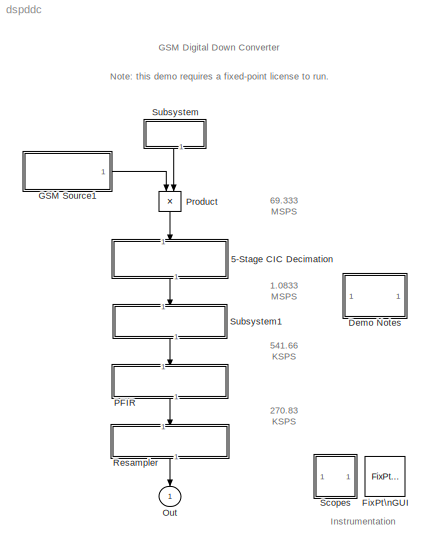
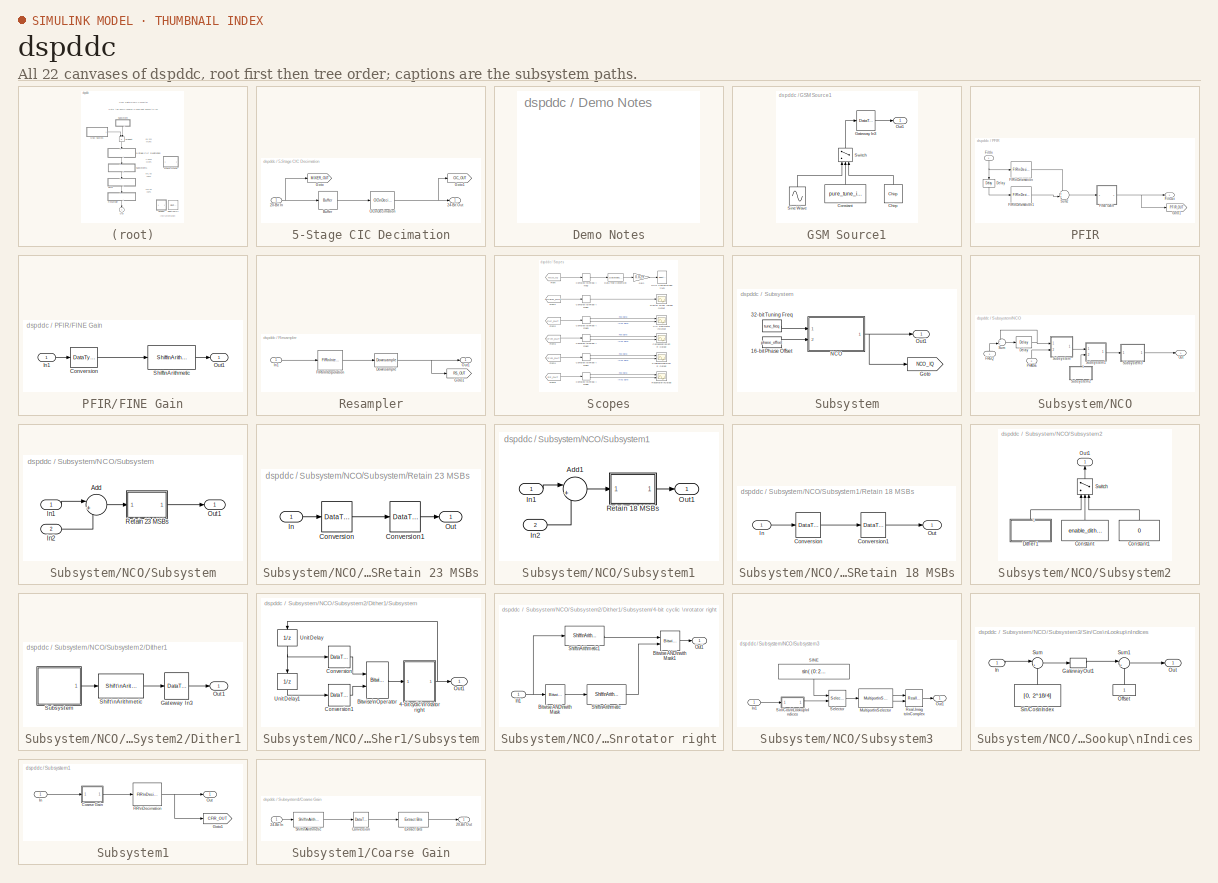
[diagram: thumbnail index - all 22 canvases of the model, root first then tree order]
MODEL dspddc
KIND model
CONFIG InitFcn = ;fxptdlg('fxptdlg_simInit_cb');
CONFIG PreLoadFcn = gsmcoeffs
CONFIG StartFcn = ;fxptdlg('fxptdlg_sim_cb');
CONFIG StopFcn = ;fxptdlg('fxptdlg_store_cb');
BLOCK [SubSystem] 5-Stage CIC Decimation
  MaskDisplay = disp('CIC Decimator')
  MaskIconFrame = on
  MaskIconOpaque = on
  MaskIconRotate = none
  MaskIconUnits = autoscale
  MinAlgLoopOccurrences = off
  Ports = [1, 1]
  PropExecContextAcrossSSBoundary = on
  RTWSystemCode = Auto
  TreatAsAtomicUnit = off
BLOCK [Inport] 5-Stage CIC Decimation/20-Bit In
  IconDisplay = Port number
  LatchInput = off
BLOCK [Outport] 5-Stage CIC Decimation/24-Bit Out
  BusOutputAsStruct = off
  IconDisplay = Port number
BLOCK [Reference] 5-Stage CIC Decimation/Buffer  REF=dspbuff3/Buffer
  N = 64
  Ports = [1, 1]
  SourceBlock = dspbuff3/Buffer
  SourceType = Buffer
  V = 0
  ic = 0
BLOCK [Reference] 5-Stage CIC Decimation/CIC\nDecimation  REF=dspmlti4/CIC\nDecimation
  BPS = [50 29 24 24 24 24 24 24 24 24]
  M = 1
  N = 5
  Ports = [1, 1]
  R = 64
  SourceBlock = dspmlti4/CIC\nDecimation
  SourceType = CIC Decimation
  UserData = DataTag0
  UserDataPersistent = on
  filtFrom = Dialog
  filtobj = Hm_decim
  framing = Maintain input frame rate
  ftype = Decimator
  launchFVT = off
  outputMode = Same as final filter stage
  outputWordLength = 24
  resampPhase = 0
BLOCK [Goto] 5-Stage CIC Decimation/Goto
  DialogController = Simulink.DDGSource
  GotoTag = MIXER_OUT
  TagVisibility = global
BLOCK [Goto] 5-Stage CIC Decimation/Goto1
  DialogController = Simulink.DDGSource
  GotoTag = CIC_OUT
  TagVisibility = global
BLOCK [SubSystem] Demo Notes
  MaskDisplay = disp('Notes')
  MaskIconFrame = on
  MaskIconOpaque = on
  MaskIconRotate = none
  MaskIconUnits = autoscale
  MinAlgLoopOccurrences = off
  OpenFcn = web(which('dspddc.html'))
  Ports = []
  PropExecContextAcrossSSBoundary = on
  RTWSystemCode = Auto
  TreatAsAtomicUnit = off
BLOCK [Reference] FixPt\nGUI  REF=fixpt_lib_4/FixPt\nGUI  (lib defined in mdl_ef9dacb0d1df)
  Ports = []
  ShowPortLabels = on
  SourceBlock = fixpt_lib_4/FixPt\nGUI
  SourceType = Fixed-Point GUI
BLOCK [SubSystem] GSM Source1
  MaskDisplay = disp(['GSM' 10 'Source']);\n\n\n\n\n\n\nport_label('output', 1, 'A/D');
  MaskEnableString = on
  MaskIconFrame = on
  MaskIconOpaque = on
  MaskIconRotate = none
  MaskIconUnits = autoscale
  MaskInitialization = pure_tune_input = (source_type - 1);
  MaskPromptString = Source type:
  MaskStyleString = popup(Chirp|Sinusoid)
  MaskToolTipString = on
  MaskTunableValueString = on
  MaskType = GSM Source
  MaskValueString = Chirp
  MaskVariables = source_type=@1;
  MaskVisibilityString = on
  MinAlgLoopOccurrences = off
  Ports = [0, 1]
  PropExecContextAcrossSSBoundary = on
  RTWSystemCode = Auto
  TreatAsAtomicUnit = off
BLOCK [Reference] GSM Source1/Chirp  REF=dspsrcs4/Chirp
  Ports = [0, 1]
  SourceBlock = dspsrcs4/Chirp
  SourceType = Chirp
  Ts = 1/69.333e6
  Tsweep = 16384/69.333e6
  datatype = Double
  f0 = .2078*69.333e6
  f1 = .2088*69.333e6
  mode = Unidirectional
  phase = 0
  spf = 1
  sweep = Linear
  t1 = 16384/69.333e6
BLOCK [Constant] GSM Source1/Constant
  OutDataTypeMode = boolean
  Value = pure_tune_input
BLOCK [DataTypeConversion] GSM Source1/Gateway In3
  OutDataType = sfix(14)
  OutDataTypeMode = Specify via dialog
  OutScaling = 2^-13
  RndMeth = Nearest
BLOCK [Outport] GSM Source1/Out1
  BusOutputAsStruct = off
  IconDisplay = Port number
BLOCK [Sin] GSM Source1/Sine Wave
  Frequency = 2*pi*69.1e6*5/24
  Ports = [0, 1]
  SampleTime = 1/69.333e6
  SineType = Time based
BLOCK [Switch] GSM Source1/Switch
  Criteria = u2 ~= 0
  SaturateOnIntegerOverflow = off
  Threshold = 0.5
BLOCK [Outport] Out
  BusOutputAsStruct = off
  IconDisplay = Port number
BLOCK [SubSystem] PFIR
  MaskCallbackString = |
  MaskDescription = Valid FINE (gain parameter) inputs are positive integers less than 16383.  The FINE_GAIN is calculated as FINE/1024.
  MaskDisplay = disp('Programmable FIR')
  MaskEnableString = on,on
  MaskIconFrame = on
  MaskIconOpaque = on
  MaskIconRotate = none
  MaskIconUnits = autoscale
  MaskPromptString = PFIR coefficients:|FINE gain (1-16383):
  MaskStyleString = edit,edit
  MaskTabNameString = ,
  MaskToolTipString = on,on
  MaskTunableValueString = off,off
  MaskType = PFIR
  MaskValueString = pfir|1024
  MaskVarAliasString = ,
  MaskVariables = h=@1;g=@2;
  MaskVisibilityString = on,on
  MinAlgLoopOccurrences = off
  Ports = [1, 1]
  PropExecContextAcrossSSBoundary = on
  RTWSystemCode = Auto
  TreatAsAtomicUnit = off
BLOCK [Reference] PFIR/Delay  REF=dspsigops/Delay
  Ports = [1, 1]
  SourceBlock = dspsigops/Delay
  SourceType = Delay
  delay = 1
  dif_ic_for_ch = off
  dif_ic_for_dly = off
  dly_unit = Samples
  ic = 0
  ic_detail = off
  reset_popup = None
BLOCK [SubSystem] PFIR/FINE Gain
  MaskDisplay = disp('FINE\\nGain')
  MaskIconFrame = on
  MaskIconOpaque = on
  MaskIconRotate = none
  MaskIconUnits = autoscale
  MinAlgLoopOccurrences = off
  Ports = [1, 1]
  PropExecContextAcrossSSBoundary = on
  RTWSystemCode = Auto
  TreatAsAtomicUnit = off
BLOCK [DataTypeConversion] PFIR/FINE Gain/Conversion
  OutDataType = sfix(24)
  OutDataTypeMode = Specify via dialog
  OutScaling = 2^12
  RndMeth = Floor
  SaturateOnIntegerOverflow = off
BLOCK [Inport] PFIR/FINE Gain/In1
  IconDisplay = Port number
  LatchInput = off
BLOCK [Outport] PFIR/FINE Gain/Out1
  BusOutputAsStruct = off
  IconDisplay = Port number
BLOCK [Reference] PFIR/FINE Gain/Shift\nArithmetic  REF=simulink/Logic and Bit\nOperations/Shift\nArithmetic
  Ports = [1, 1]
  ShowPortLabels = on
  SourceBlock = simulink/Logic and Bit\nOperations/Shift\nArithmetic
  SourceType = Shift Arithmetic
  nBinPtShiftRight = 0
  nBitShiftRight = -( log2(g) - 10 )
BLOCK [Reference] PFIR/FIR\nDecimation  REF=dspmlti3/FIR\nDecimation
  D = 2
  DialogController = dspDDGCreate
  DialogControllerArgs = DataTag1
  LockScale = off
  Ports = [1, 1]
  SourceBlock = dspmlti3/FIR\nDecimation
  SourceType = FIR Decimation
  accumFracLength = 30
  accumMode = Same as product output
  accumWordLength = 32
  additionalParams = off
  allowOverrides = on
  firstCoeffFracLength = 16
  firstCoeffMode = Specify word length
  firstCoeffWordLength = 16
  framing = Maintain input frame size
  h = h(1:2:length(h))
  outputBufInitCond = 0
  outputFracLength = -12
  outputMode = Same as accumulator
  outputWordLength = 20
  overflowMode = off
  prodOutputFracLength = -12
  prodOutputMode = Binary point scaling
  prodOutputWordLength = 20
  roundingMode = Nearest
BLOCK [Reference] PFIR/FIR\nDecimation1  REF=dspmlti3/FIR\nDecimation
  D = 2
  DialogController = dspDDGCreate
  DialogControllerArgs = DataTag2
  LockScale = off
  Ports = [1, 1]
  SourceBlock = dspmlti3/FIR\nDecimation
  SourceType = FIR Decimation
  accumFracLength = 30
  accumMode = Same as product output
  accumWordLength = 32
  additionalParams = off
  allowOverrides = on
  firstCoeffFracLength = 16
  firstCoeffMode = Specify word length
  firstCoeffWordLength = 16
  framing = Maintain input frame size
  h = h(2:2:length(h))
  outputBufInitCond = 0
  outputFracLength = -12
  outputMode = Same as accumulator
  outputWordLength = 20
  overflowMode = off
  prodOutputFracLength = -12
  prodOutputMode = Binary point scaling
  prodOutputWordLength = 20
  roundingMode = Nearest
BLOCK [Inport] PFIR/FiltIn
  IconDisplay = Port number
  LatchInput = off
BLOCK [Outport] PFIR/FiltOut
  BusOutputAsStruct = off
  IconDisplay = Port number
BLOCK [Goto] PFIR/Goto1
  DialogController = Simulink.DDGSource
  GotoTag = PFIR_OUT
  TagVisibility = global
BLOCK [Sum] PFIR/Sum2
  IconShape = round
  Inputs = ++|
  OutDataType = sfix(20)
  OutDataTypeMode = Inherit via internal rule
  OutScaling = 2^12
  Ports = [2, 1]
BLOCK [Product] Product
  InputSameDT = off
  OutDataType = sfix(20)
  OutDataTypeMode = Specify via dialog
  OutScaling = 2^-18
  Ports = [2, 1]
  RndMeth = Nearest
  SaturateOnIntegerOverflow = off
BLOCK [SubSystem] Resampler
  MaskCallbackString = ||
  MaskDisplay = disp('Rate Conversion')
  MaskEnableString = on,on,on
  MaskIconFrame = on
  MaskIconOpaque = on
  MaskIconRotate = none
  MaskIconUnits = autoscale
  MaskPromptString = Resampling FIR coefficients:|NDELAY (upsample factor):|NDEC (downsample factor):
  MaskStyleString = edit,edit,edit
  MaskTabNameString = ,,
  MaskToolTipString = on,on,on
  MaskTunableValueString = off,off,off
  MaskType = Resampler
  MaskValueString = fir1(31,0.25)|4|3
  MaskVarAliasString = ,,
  MaskVariables = h=@1;Ndelay=@2;Ndec=@3;
  MaskVisibilityString = on,on,on
  MinAlgLoopOccurrences = off
  Ports = [1, 1]
  PropExecContextAcrossSSBoundary = on
  RTWSystemCode = Auto
  TreatAsAtomicUnit = off
BLOCK [Reference] Resampler/Downsample  REF=dspsigops/Downsample
  N = Ndec
  Ports = [1, 1]
  SourceBlock = dspsigops/Downsample
  SourceType = Downsample
  fmode = Maintain input frame size
  ic = 0
  phase = 0
  smode = Allow multirate
BLOCK [Reference] Resampler/FIR\nInterpolation  REF=dspmlti3/FIR\nInterpolation
  DialogController = dspDDGCreate
  DialogControllerArgs = DataTag3
  L = Ndelay
  LockScale = off
  Ports = [1, 1]
  SourceBlock = dspmlti3/FIR\nInterpolation
  SourceType = FIR Interpolation
  accumFracLength = 30
  accumMode = Same as product output
  accumWordLength = 32
  additionalParams = off
  allowOverrides = on
  firstCoeffFracLength = 13
  firstCoeffMode = Specify word length
  firstCoeffWordLength = 12
  framing = Maintain input frame size
  h = h
  outputBufInitCond = 0
  outputFracLength = -12
  outputMode = Same as accumulator
  outputWordLength = 24
  overflowMode = off
  prodOutputFracLength = -12
  prodOutputMode = Binary point scaling
  prodOutputWordLength = 24
  roundingMode = Nearest
BLOCK [Goto] Resampler/Goto1
  DialogController = Simulink.DDGSource
  GotoTag = RS_OUT
  TagVisibility = global
BLOCK [Inport] Resampler/In1
  IconDisplay = Port number
  LatchInput = off
BLOCK [Outport] Resampler/Out1
  BusOutputAsStruct = off
  IconDisplay = Port number
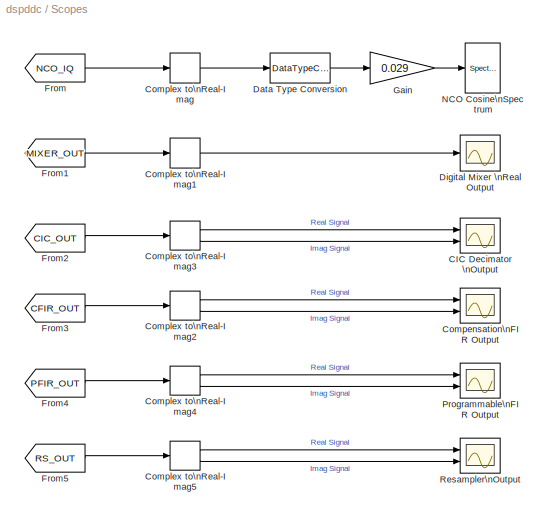
BLOCK [SubSystem] Scopes
  MaskDisplay = disp('Scopes')
  MaskIconFrame = on
  MaskIconOpaque = on
  MaskIconRotate = none
  MaskIconUnits = autoscale
  MinAlgLoopOccurrences = off
  Ports = []
  PropExecContextAcrossSSBoundary = on
  RTWSystemCode = Auto
  TreatAsAtomicUnit = off
BLOCK [Scope] Scopes/CIC Decimator \nOutput
  DataFormat = Structure
  MaxDataPoints = 1000000
  NumInputPorts = 2
  Ports = [2]
  SaveName = ScopeData1
  TimeRange = 0.0003
  YMax = 1e+009~1e+009
  YMin = -1e+009~-1e+009
  ZoomMode = xonly
BLOCK [Scope] Scopes/Compensation\nFIR Output
  DataFormat = Structure
  MaxDataPoints = 1000000
  NumInputPorts = 2
  Ports = [2]
  SaveName = ScopeData2
  TimeRange = 0.0003
  YMax = 1e+009~1e+009
  YMin = -1e+009~-1e+009
BLOCK [ComplexToRealImag] Scopes/Complex to\nReal-Imag
  Output = Real
  Ports = [1, 1]
BLOCK [ComplexToRealImag] Scopes/Complex to\nReal-Imag1
  Output = Real
  Ports = [1, 1]
BLOCK [ComplexToRealImag] Scopes/Complex to\nReal-Imag2
  Output = Real and imag
  Ports = [1, 2]
BLOCK [ComplexToRealImag] Scopes/Complex to\nReal-Imag3
  Output = Real and imag
  Ports = [1, 2]
BLOCK [ComplexToRealImag] Scopes/Complex to\nReal-Imag4
  Output = Real and imag
  Ports = [1, 2]
BLOCK [ComplexToRealImag] Scopes/Complex to\nReal-Imag5
  Output = Real and imag
  Ports = [1, 2]
BLOCK [DataTypeConversion] Scopes/Data Type Conversion
  OutDataTypeMode = double
BLOCK [Scope] Scopes/Digital Mixer \nReal Output
  DataFormat = Structure
  MaxDataPoints = 1000000
  NumInputPorts = 1
  Ports = [1]
  SaveName = ScopeData5
  TimeRange = 0.0003
  YMax = 1
  YMin = -1
  ZoomMode = xonly
BLOCK [From] Scopes/From
  CloseFcn = tagdialog Close
  DialogController = Simulink.DDGSource
  GotoTag = NCO_IQ
BLOCK [From] Scopes/From1
  CloseFcn = tagdialog Close
  DialogController = Simulink.DDGSource
  GotoTag = MIXER_OUT
BLOCK [From] Scopes/From2
  CloseFcn = tagdialog Close
  DialogController = Simulink.DDGSource
  GotoTag = CIC_OUT
BLOCK [From] Scopes/From3
  CloseFcn = tagdialog Close
  DialogController = Simulink.DDGSource
  GotoTag = CFIR_OUT
BLOCK [From] Scopes/From4
  CloseFcn = tagdialog Close
  DialogController = Simulink.DDGSource
  GotoTag = PFIR_OUT
BLOCK [From] Scopes/From5
  CloseFcn = tagdialog Close
  DialogController = Simulink.DDGSource
  GotoTag = RS_OUT
BLOCK [Gain] Scopes/Gain
  Gain = 0.029
BLOCK [Reference] Scopes/NCO Cosine\nSpectrum  REF=dspsnks4/Spectrum\nScope
  AxisGrid = on
  AxisLegend = off
  AxisProperties = off
  AxisZoom = off
  BufferSize = 8192
  DisplayProperties = off
  Domain = Frequency
  FFTlength = 128
  FigPos = [19 48 560 420]
  FrameNumber = off
  HorizSpan = 1
  InheritXIncr = on
  LineProperties = off
  Memory = off
  OpenScopeAtSimStart = on
  OpenScopeImmediately = off
  Overlap = 0
  Ports = [1]
  ScopeProperties = on
  ShowPortLabels = off
  SourceBlock = dspsnks4/Spectrum\nScope
  SourceType = Spectrum Scope
  UseBuffer = on
  XIncr = 1.0
  XLabel = Samples
  XRange = [0...Fs/2]
  XUnits = Hertz
  YLabel = Magnitude, dB
  YMax = 5
  YMin = -160
  YUnits = dB
  inpFftLenInherit = off
  numAvg = 2
BLOCK [Scope] Scopes/Programmable\nFIR Output
  DataFormat = Structure
  MaxDataPoints = 1000000
  NumInputPorts = 2
  Ports = [2]
  SaveName = ScopeData3
  TimeRange = 0.0003
  YMax = 1e+009~1e+009
  YMin = -1e+009~-1e+009
BLOCK [Scope] Scopes/Resampler\nOutput
  DataFormat = Structure
  MaxDataPoints = 1000000
  NumInputPorts = 2
  Ports = [2]
  SaveName = ScopeData4
  TimeRange = 0.0003
  YMax = 2e+008~2e+008
  YMin = -2e+008~-2e+008
  ZoomMode = xonly
BLOCK [SubSystem] Subsystem
  MaskCallbackString = |||
  MaskDisplay = disp('NCO')
  MaskEnableString = on,on,on,on
  MaskIconFrame = on
  MaskIconOpaque = on
  MaskIconRotate = none
  MaskIconUnits = autoscale
  MaskPromptString = Normalized 32-bit tuning frequency (0 to 2^32)|Normalized 16-bit phase offset (0 to 2^16):|Enable dithering|Number of dither bits (1 to 19):
  MaskStyleString = edit,edit,checkbox,edit
  MaskTabNameString = ,,,
  MaskToolTipString = on,on,on,on
  MaskTunableValueString = on,on,on,off
  MaskType = Numerically Controlled Oscillator (NCO)
  MaskValueString = (5/24) * (2^32)|0|on|5
  MaskVarAliasString = ,,,
  MaskVariables = tune_freq=@1;phase_offset=@2;enable_dither=@3;bits=@4;
  MaskVisibilityString = on,on,on,on
  MinAlgLoopOccurrences = off
  Ports = [0, 1]
  PropExecContextAcrossSSBoundary = on
  RTWSystemCode = Auto
  TreatAsAtomicUnit = off
BLOCK [Constant] Subsystem/16-bit Phase Offset
  OutDataType = ufix(16)
  OutDataTypeMode = Specify via dialog
  OutScaling = 2^-0
  Value = phase_offset
BLOCK [Constant] Subsystem/32-bit Tuning Freq
  OutDataType = ufix(32)
  OutDataTypeMode = Specify via dialog
  OutScaling = 2^-0
  Value = tune_freq
BLOCK [Goto] Subsystem/Goto
  DialogController = Simulink.DDGSource
  GotoTag = NCO_IQ
  TagVisibility = global
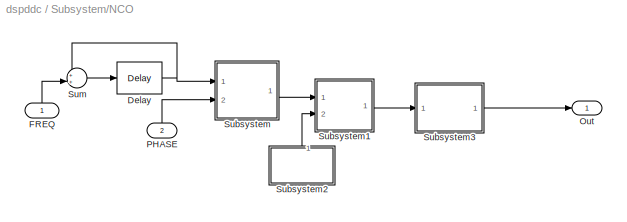
BLOCK [SubSystem] Subsystem/NCO
  MaskDisplay = disp('NCO')
  MaskIconFrame = on
  MaskIconOpaque = off
  MaskIconRotate = none
  MaskIconUnits = autoscale
  MaskType = Numerically Controlled Oscillator (NCO)
  MinAlgLoopOccurrences = off
  Ports = [2, 1]
  PropExecContextAcrossSSBoundary = on
  RTWSystemCode = Auto
  TreatAsAtomicUnit = off
BLOCK [Reference] Subsystem/NCO/Delay  REF=dspsigops/Delay
  Ports = [1, 1]
  SourceBlock = dspsigops/Delay
  SourceType = Delay
  delay = 1
  dif_ic_for_ch = off
  dif_ic_for_dly = off
  dly_unit = Samples
  ic = 0
  ic_detail = off
  reset_popup = None
BLOCK [Inport] Subsystem/NCO/FREQ
  IconDisplay = Port number
  LatchInput = off
BLOCK [Outport] Subsystem/NCO/Out
  BusOutputAsStruct = off
  IconDisplay = Port number
BLOCK [Inport] Subsystem/NCO/PHASE
  IconDisplay = Port number
  LatchInput = off
  Port = 2
BLOCK [SubSystem] Subsystem/NCO/Subsystem
  MaskDisplay = disp(['Sum and\\nretain\\n23 MSBs'])
  MaskIconFrame = on
  MaskIconOpaque = on
  MaskIconRotate = none
  MaskIconUnits = autoscale
  MinAlgLoopOccurrences = off
  Ports = [2, 1]
  PropExecContextAcrossSSBoundary = on
  RTWSystemCode = Auto
  TreatAsAtomicUnit = off
BLOCK [Sum] Subsystem/NCO/Subsystem/Add
  IconShape = round
  InputSameDT = off
  Inputs = |++
  OutDataType = ufix(32)
  OutDataTypeMode = Specify via dialog
  OutScaling = 2^-0
  Ports = [2, 1]
  SaturateOnIntegerOverflow = off
BLOCK [Inport] Subsystem/NCO/Subsystem/In1
  IconDisplay = Port number
  LatchInput = off
BLOCK [Inport] Subsystem/NCO/Subsystem/In2
  IconDisplay = Port number
  LatchInput = off
  Port = 2
BLOCK [Outport] Subsystem/NCO/Subsystem/Out1
  BusOutputAsStruct = off
  IconDisplay = Port number
BLOCK [SubSystem] Subsystem/NCO/Subsystem/Retain 23 MSBs
  MinAlgLoopOccurrences = off
  Ports = [1, 1]
  PropExecContextAcrossSSBoundary = on
  RTWSystemCode = Auto
  TreatAsAtomicUnit = off
BLOCK [DataTypeConversion] Subsystem/NCO/Subsystem/Retain 23 MSBs/Conversion
  OutDataType = ufix(23)
  OutDataTypeMode = Specify via dialog
  OutScaling = 2^9
  RndMeth = Floor
  SaturateOnIntegerOverflow = off
BLOCK [DataTypeConversion] Subsystem/NCO/Subsystem/Retain 23 MSBs/Conversion1
  ConvertRealWorld = Stored Integer (SI)
  OutDataType = ufix(23)
  OutDataTypeMode = Specify via dialog
  RndMeth = Floor
  SaturateOnIntegerOverflow = off
BLOCK [Inport] Subsystem/NCO/Subsystem/Retain 23 MSBs/In
  IconDisplay = Port number
  LatchInput = off
BLOCK [Outport] Subsystem/NCO/Subsystem/Retain 23 MSBs/Out
  BusOutputAsStruct = off
  IconDisplay = Port number
BLOCK [SubSystem] Subsystem/NCO/Subsystem1
  MaskDisplay = disp('Sum and\\nretain\\n18 MSBs')
  MaskIconFrame = on
  MaskIconOpaque = on
  MaskIconRotate = none
  MaskIconUnits = autoscale
  MinAlgLoopOccurrences = off
  Ports = [2, 1]
  PropExecContextAcrossSSBoundary = on
  RTWSystemCode = Auto
  TreatAsAtomicUnit = off
BLOCK [Sum] Subsystem/NCO/Subsystem1/Add1
  IconShape = round
  Inputs = |++
  OutDataType = ufix(23)
  OutDataTypeMode = Specify via dialog
  OutScaling = 2^-0
  Ports = [2, 1]
  SaturateOnIntegerOverflow = off
BLOCK [Inport] Subsystem/NCO/Subsystem1/In1
  IconDisplay = Port number
  LatchInput = off
BLOCK [Inport] Subsystem/NCO/Subsystem1/In2
  IconDisplay = Port number
  LatchInput = off
  Port = 2
BLOCK [Outport] Subsystem/NCO/Subsystem1/Out1
  BusOutputAsStruct = off
  IconDisplay = Port number
BLOCK [SubSystem] Subsystem/NCO/Subsystem1/Retain 18 MSBs
  MinAlgLoopOccurrences = off
  Ports = [1, 1]
  PropExecContextAcrossSSBoundary = on
  RTWSystemCode = Auto
  TreatAsAtomicUnit = off
BLOCK [DataTypeConversion] Subsystem/NCO/Subsystem1/Retain 18 MSBs/Conversion
  OutDataType = ufix(23)
  OutDataTypeMode = Specify via dialog
  OutScaling = 2^5
  RndMeth = Floor
  SaturateOnIntegerOverflow = off
BLOCK [DataTypeConversion] Subsystem/NCO/Subsystem1/Retain 18 MSBs/Conversion1
  ConvertRealWorld = Stored Integer (SI)
  OutDataType = ufix(18)
  OutDataTypeMode = Specify via dialog
  RndMeth = Floor
  SaturateOnIntegerOverflow = off
BLOCK [Inport] Subsystem/NCO/Subsystem1/Retain 18 MSBs/In
  IconDisplay = Port number
  LatchInput = off
BLOCK [Outport] Subsystem/NCO/Subsystem1/Retain 18 MSBs/Out
  BusOutputAsStruct = off
  IconDisplay = Port number
BLOCK [SubSystem] Subsystem/NCO/Subsystem2
  MaskDisplay = disp(['Dither' 10 'Generator'])
  MaskIconFrame = on
  MaskIconOpaque = on
  MaskIconRotate = none
  MaskIconUnits = autoscale
  MinAlgLoopOccurrences = off
  Ports = [0, 1]
  PropExecContextAcrossSSBoundary = on
  RTWSystemCode = Auto
  TreatAsAtomicUnit = off
BLOCK [Constant] Subsystem/NCO/Subsystem2/Constant
  OutDataTypeMode = boolean
  Value = enable_dither
BLOCK [Constant] Subsystem/NCO/Subsystem2/Constant1
  OutDataType = ufix(23)
  OutDataTypeMode = Specify via dialog
  Value = 0
BLOCK [SubSystem] Subsystem/NCO/Subsystem2/Dither1
  MaskDisplay = disp(['DITHER' 10 'GENERATOR'])
  MaskIconFrame = on
  MaskIconOpaque = on
  MaskIconRotate = none
  MaskIconUnits = autoscale
  MinAlgLoopOccurrences = off
  Ports = [0, 1]
  PropExecContextAcrossSSBoundary = on
  RTWSystemCode = Auto
  TreatAsAtomicUnit = off
BLOCK [DataTypeConversion] Subsystem/NCO/Subsystem2/Dither1/Gateway In3
  OutDataType = ufix(23)
  OutDataTypeMode = Specify via dialog
  RndMeth = Floor
  SaturateOnIntegerOverflow = off
BLOCK [Outport] Subsystem/NCO/Subsystem2/Dither1/Out1
  BusOutputAsStruct = off
  IconDisplay = Port number
BLOCK [Reference] Subsystem/NCO/Subsystem2/Dither1/Shift\nArithmetic  REF=simulink/Logic and Bit\nOperations/Shift\nArithmetic
  Ports = [1, 1]
  ShowPortLabels = on
  SourceBlock = simulink/Logic and Bit\nOperations/Shift\nArithmetic
  SourceType = Shift Arithmetic
  nBinPtShiftRight = 0
  nBitShiftRight = (19-bits)
BLOCK [SubSystem] Subsystem/NCO/Subsystem2/Dither1/Subsystem
  MaskCallbackString = |
  MaskDisplay = disp(['Fixed-point' 10 'Random' 10 'Number' 10 'Generator'])
  MaskEnableString = on,on
  MaskIconFrame = on
  MaskIconOpaque = on
  MaskIconRotate = none
  MaskIconUnits = autoscale
  MaskPromptString = Shift register size (nbits):|Sample time:
  MaskStyleString = edit,edit
  MaskTabNameString = ,
  MaskToolTipString = on,on
  MaskTunableValueString = off,on
  MaskValueString = 19|1/69.333e6
  MaskVarAliasString = ,
  MaskVariables = nbit=@1;ts=@2;
  MaskVisibilityString = on,on
  MinAlgLoopOccurrences = off
  Ports = [0, 1]
  PropExecContextAcrossSSBoundary = on
  RTWSystemCode = Auto
  TreatAsAtomicUnit = off
BLOCK [SubSystem] Subsystem/NCO/Subsystem2/Dither1/Subsystem/4-bit cyclic \nrotator right
  MaskDisplay = disp(['Cyclic' 10 'Right' 10 'Rotator' 10 'ROR'])
  MaskIconFrame = on
  MaskIconOpaque = on
  MaskIconRotate = none
  MaskIconUnits = autoscale
  MinAlgLoopOccurrences = off
  Ports = [1, 1]
  PropExecContextAcrossSSBoundary = on
  RTWSystemCode = Auto
  TreatAsAtomicUnit = off
BLOCK [Reference] Subsystem/NCO/Subsystem2/Dither1/Subsystem/4-bit cyclic \nrotator right/Bitwise AND\nwith Mask  REF=simulink/Logic and Bit\nOperations/Bitwise\nOperator
  BitMask = bin2dec('1')
  BitMaskRealWorld = Stored Integer
  NumInputPorts = 1
  Ports = [1, 1]
  SourceBlock = simulink/Logic and Bit\nOperations/Bitwise\nOperator
  SourceType = Bitwise Operator
  UseBitMask = on
  logicop = AND
BLOCK [Reference] Subsystem/NCO/Subsystem2/Dither1/Subsystem/4-bit cyclic \nrotator right/Bitwise AND\nwith Mask1  REF=simulink/Logic and Bit\nOperations/Bitwise\nOperator
  BitMask = bin2dec('1')
  BitMaskRealWorld = Stored Integer
  NumInputPorts = 2
  Ports = [2, 1]
  SourceBlock = simulink/Logic and Bit\nOperations/Bitwise\nOperator
  SourceType = Bitwise Operator
  UseBitMask = off
  logicop = OR
BLOCK [Inport] Subsystem/NCO/Subsystem2/Dither1/Subsystem/4-bit cyclic \nrotator right/In1
  IconDisplay = Port number
  LatchInput = off
BLOCK [Outport] Subsystem/NCO/Subsystem2/Dither1/Subsystem/4-bit cyclic \nrotator right/Out1
  BusOutputAsStruct = off
  IconDisplay = Port number
BLOCK [Reference] Subsystem/NCO/Subsystem2/Dither1/Subsystem/4-bit cyclic \nrotator right/Shift\nArithmetic  REF=simulink/Logic and Bit\nOperations/Shift\nArithmetic
  Ports = [1, 1]
  ShowPortLabels = on
  SourceBlock = simulink/Logic and Bit\nOperations/Shift\nArithmetic
  SourceType = Shift Arithmetic
  nBinPtShiftRight = 0
  nBitShiftRight = -(nbit-1)
BLOCK [Reference] Subsystem/NCO/Subsystem2/Dither1/Subsystem/4-bit cyclic \nrotator right/Shift\nArithmetic1  REF=simulink/Logic and Bit\nOperations/Shift\nArithmetic
  Ports = [1, 1]
  ShowPortLabels = on
  SourceBlock = simulink/Logic and Bit\nOperations/Shift\nArithmetic
  SourceType = Shift Arithmetic
  nBinPtShiftRight = 0
  nBitShiftRight = 1
BLOCK [Reference] Subsystem/NCO/Subsystem2/Dither1/Subsystem/Bitwise\nOperator  REF=simulink/Logic and Bit\nOperations/Bitwise\nOperator
  BitMask = bin2dec('11011001')
  BitMaskRealWorld = Stored Integer
  NumInputPorts = 2
  Ports = [2, 1]
  SourceBlock = simulink/Logic and Bit\nOperations/Bitwise\nOperator
  SourceType = Bitwise Operator
  UseBitMask = off
  logicop = XOR
BLOCK [DataTypeConversion] Subsystem/NCO/Subsystem2/Dither1/Subsystem/Conversion
  OutDataType = ufix(nbit)
  OutDataTypeMode = Specify via dialog
  RndMeth = Floor
  SaturateOnIntegerOverflow = off
BLOCK [DataTypeConversion] Subsystem/NCO/Subsystem2/Dither1/Subsystem/Conversion1
  OutDataType = ufix(nbit)
  OutDataTypeMode = Specify via dialog
  RndMeth = Floor
  SaturateOnIntegerOverflow = off
BLOCK [Outport] Subsystem/NCO/Subsystem2/Dither1/Subsystem/Out1
  BusOutputAsStruct = off
  IconDisplay = Port number
BLOCK [UnitDelay] Subsystem/NCO/Subsystem2/Dither1/Subsystem/Unit Delay
  SampleTime = ts
  X0 = 1
BLOCK [UnitDelay] Subsystem/NCO/Subsystem2/Dither1/Subsystem/Unit Delay1
  SampleTime = ts
  X0 = 2
BLOCK [Outport] Subsystem/NCO/Subsystem2/Out1
  BusOutputAsStruct = off
  IconDisplay = Port number
BLOCK [Switch] Subsystem/NCO/Subsystem2/Switch
  Criteria = u2 ~= 0
  SaturateOnIntegerOverflow = off
  Threshold = 0.5
BLOCK [SubSystem] Subsystem/NCO/Subsystem3
  MaskDisplay = disp(['Sine/Cosine\\nLookup'])
  MaskIconFrame = on
  MaskIconOpaque = on
  MaskIconRotate = none
  MaskIconUnits = autoscale
  MinAlgLoopOccurrences = off
  Ports = [1, 1]
  PropExecContextAcrossSSBoundary = on
  RTWSystemCode = Auto
  TreatAsAtomicUnit = off
BLOCK [Inport] Subsystem/NCO/Subsystem3/In1
  IconDisplay = Port number
  LatchInput = off
BLOCK [Reference] Subsystem/NCO/Subsystem3/Multiport\nSelector  REF=dspindex/Multiport\nSelector
  Ports = [1, 2]
  SourceBlock = dspindex/Multiport\nSelector
  SourceType = Multiport Selector
  idxCellArray = { 1, 2 }
  idxErrMode = Clip Index
  rowsOrCols = Rows
BLOCK [Outport] Subsystem/NCO/Subsystem3/Out1
  BusOutputAsStruct = off
  IconDisplay = Port number
BLOCK [RealImagToComplex] Subsystem/NCO/Subsystem3/Real-Imag to\nComplex
  Input = Real and imag
  Ports = [2, 1]
BLOCK [Constant] Subsystem/NCO/Subsystem3/SINE
  OutDataType = sfix(20)
  OutDataTypeMode = Specify via dialog
  OutScaling = 2^-18
  Value = sin( (0:  2^18-1) * (2^-17)  * pi)'
  VectorParams1D = off
BLOCK [Selector] Subsystem/NCO/Subsystem3/Selector
  ElementSrc = External
  Elements = [1 3]
  InputPortWidth = 2^18
  Ports = [2, 1]
BLOCK [SubSystem] Subsystem/NCO/Subsystem3/Sin//Cos\nLookup\nIndices
  MinAlgLoopOccurrences = off
  Ports = [1, 1]
  PropExecContextAcrossSSBoundary = on
  RTWSystemCode = Auto
  TreatAsAtomicUnit = off
BLOCK [DataTypeConversion] Subsystem/NCO/Subsystem3/Sin//Cos\nLookup\nIndices/Gateway Out1
  ConvertRealWorld = Stored Integer (SI)
  OutDataTypeMode = uint32
  RndMeth = Floor
  SaturateOnIntegerOverflow = off
BLOCK [Inport] Subsystem/NCO/Subsystem3/Sin//Cos\nLookup\nIndices/In
  IconDisplay = Port number
  LatchInput = off
BLOCK [Constant] Subsystem/NCO/Subsystem3/Sin//Cos\nLookup\nIndices/Offset
  OutDataType = uint(32)
  OutDataTypeMode = Specify via dialog
  OutScaling = 2^-0
BLOCK [Outport] Subsystem/NCO/Subsystem3/Sin//Cos\nLookup\nIndices/Out
  BusOutputAsStruct = off
  IconDisplay = Port number
BLOCK [Constant] Subsystem/NCO/Subsystem3/Sin//Cos\nLookup\nIndices/Sin//Cos\nIndex
  OutDataType = sfix(5)
  OutDataTypeMode = Inherit via back propagation
  OutScaling = 2^-0
  Value = [0,  2^18/4]
BLOCK [Sum] Subsystem/NCO/Subsystem3/Sin//Cos\nLookup\nIndices/Sum
  IconShape = round
  Inputs = |++
  Ports = [2, 1]
  SaturateOnIntegerOverflow = off
BLOCK [Sum] Subsystem/NCO/Subsystem3/Sin//Cos\nLookup\nIndices/Sum1
  IconShape = round
  Inputs = |++
  Ports = [2, 1]
  SaturateOnIntegerOverflow = off
BLOCK [Sum] Subsystem/NCO/Sum
  IconShape = round
  InputSameDT = off
  Inputs = ++|
  OutDataTypeMode = uint32
  Ports = [2, 1]
  RndMeth = Nearest
  SaturateOnIntegerOverflow = off
BLOCK [Outport] Subsystem/Out1
  BusOutputAsStruct = off
  IconDisplay = Port number
BLOCK [SubSystem] Subsystem1
  MaskCallbackString = |
  MaskDisplay = disp('Compensation FIR')
  MaskEnableString = on,on
  MaskIconFrame = on
  MaskIconOpaque = on
  MaskIconRotate = none
  MaskIconUnits = autoscale
  MaskPromptString = COARSE gain (0-7):|CFIR coefficients:
  MaskStyleString = edit,edit
  MaskTabNameString = ,
  MaskToolTipString = on,on
  MaskTunableValueString = on,off
  MaskType = Compensation FIR (CFIR)
  MaskValueString = 0|cfir
  MaskVarAliasString = ,
  MaskVariables = coarse_gain=@1;cfir_h=@2;
  MaskVisibilityString = on,on
  MinAlgLoopOccurrences = off
  Ports = [1, 1]
  PropExecContextAcrossSSBoundary = on
  RTWSystemCode = Auto
  TreatAsAtomicUnit = off
BLOCK [SubSystem] Subsystem1/Coarse Gain
  MaskDisplay = disp(['Coarse' 10 'Gain'])
  MaskIconFrame = on
  MaskIconOpaque = on
  MaskIconRotate = none
  MaskIconUnits = autoscale
  MinAlgLoopOccurrences = off
  Ports = [1, 1]
  PropExecContextAcrossSSBoundary = on
  RTWSystemCode = Auto
  TreatAsAtomicUnit = off
BLOCK [Outport] Subsystem1/Coarse Gain/20-Bit Out
  BusOutputAsStruct = off
  IconDisplay = Port number
BLOCK [Inport] Subsystem1/Coarse Gain/24-Bit In
  IconDisplay = Port number
  LatchInput = off
BLOCK [DataTypeConversion] Subsystem1/Coarse Gain/Conversion
  OutDataType = sfix(24)
  OutDataTypeMode = Specify via dialog
  OutScaling = 2^12
  RndMeth = Floor
  SaturateOnIntegerOverflow = off
BLOCK [Reference] Subsystem1/Coarse Gain/Extract Bits  REF=simulink/Logic and Bit\nOperations/Extract Bits
  Ports = [1, 1]
  ShowPortLabels = on
  SourceBlock = simulink/Logic and Bit\nOperations/Extract Bits
  SourceType = Extract Bits
  bitIdxRange = [0 19]
  bitsToExtract = Range of bits
  numBits = 8
  outScalingMode = Preserve fixed-point scaling
BLOCK [Reference] Subsystem1/Coarse Gain/Shift\nArithmetic  REF=simulink/Logic and Bit\nOperations/Shift\nArithmetic
  Ports = [1, 1]
  ShowPortLabels = on
  SourceBlock = simulink/Logic and Bit\nOperations/Shift\nArithmetic
  SourceType = Shift Arithmetic
  nBinPtShiftRight = 0
  nBitShiftRight = -1*coarse_gain
BLOCK [Reference] Subsystem1/FIR\nDecimation  REF=dspmlti3/FIR\nDecimation
  D = 2
  DialogController = dspDDGCreate
  DialogControllerArgs = DataTag4
  LockScale = off
  Ports = [1, 1]
  SourceBlock = dspmlti3/FIR\nDecimation
  SourceType = FIR Decimation
  accumFracLength = 30
  accumMode = Same as product output
  accumWordLength = 32
  additionalParams = off
  allowOverrides = on
  firstCoeffFracLength = 16
  firstCoeffMode = Specify word length
  firstCoeffWordLength = 16
  framing = Maintain input frame size
  h = cfir_h
  outputBufInitCond = 0
  outputFracLength = -12
  outputMode = Same as accumulator
  outputWordLength = 20
  overflowMode = off
  prodOutputFracLength = -12
  prodOutputMode = Binary point scaling
  prodOutputWordLength = 20
  roundingMode = Nearest
BLOCK [Goto] Subsystem1/Goto1
  DialogController = Simulink.DDGSource
  GotoTag = CFIR_OUT
  TagVisibility = global
BLOCK [Inport] Subsystem1/In
  IconDisplay = Port number
  LatchInput = off
BLOCK [Outport] Subsystem1/Out
  BusOutputAsStruct = off
  IconDisplay = Port number
ANNOTATION (root): 1.0833\nMSPS
ANNOTATION (root): 270.83\nKSPS
ANNOTATION (root): 541.66\nKSPS
ANNOTATION (root): 69.333\nMSPS
ANNOTATION (root): GSM Digital Down Converter
ANNOTATION (root): Instrumentation
ANNOTATION (root): \nNote: this demo requires a fixed-point license to run.
NET 5-Stage CIC Decimation/20-Bit In:1 -> 5-Stage CIC Decimation/Buffer:1, 5-Stage CIC Decimation/Goto:1
LINE 5-Stage CIC Decimation/Buffer:1 -> 5-Stage CIC Decimation/CIC\nDecimation:1
NET 5-Stage CIC Decimation/CIC\nDecimation:1 -> 5-Stage CIC Decimation/24-Bit Out:1, 5-Stage CIC Decimation/Goto1:1
LINE 5-Stage CIC Decimation:1 -> Subsystem1:1
LINE GSM Source1/Chirp:1 -> GSM Source1/Switch:3
LINE GSM Source1/Constant:1 -> GSM Source1/Switch:2
LINE GSM Source1/Gateway In3:1 -> GSM Source1/Out1:1
LINE GSM Source1/Sine Wave:1 -> GSM Source1/Switch:1
LINE GSM Source1/Switch:1 -> GSM Source1/Gateway In3:1
LINE GSM Source1:1 -> Product:1
LINE PFIR/Delay:1 -> PFIR/FIR\nDecimation1:1
LINE PFIR/FINE Gain/Conversion:1 -> PFIR/FINE Gain/Shift\nArithmetic:1
LINE PFIR/FINE Gain/In1:1 -> PFIR/FINE Gain/Conversion:1
LINE PFIR/FINE Gain/Shift\nArithmetic:1 -> PFIR/FINE Gain/Out1:1
NET PFIR/FINE Gain:1 -> PFIR/FiltOut:1, PFIR/Goto1:1
LINE PFIR/FIR\nDecimation1:1 -> PFIR/Sum2:2
LINE PFIR/FIR\nDecimation:1 -> PFIR/Sum2:1
NET PFIR/FiltIn:1 -> PFIR/Delay:1, PFIR/FIR\nDecimation:1
LINE PFIR/Sum2:1 -> PFIR/FINE Gain:1
LINE PFIR:1 -> Resampler:1
LINE Product:1 -> 5-Stage CIC Decimation:1
NET Resampler/Downsample:1 -> Resampler/Goto1:1, Resampler/Out1:1
LINE Resampler/FIR\nInterpolation:1 -> Resampler/Downsample:1
LINE Resampler/In1:1 -> Resampler/FIR\nInterpolation:1
LINE Resampler:1 -> Out:1
LINE Scopes/Complex to\nReal-Imag1:1 -> Scopes/Digital Mixer \nReal Output:1
LINE Scopes/Complex to\nReal-Imag2:1 -> Scopes/Compensation\nFIR Output:1
LINE Scopes/Complex to\nReal-Imag2:2 -> Scopes/Compensation\nFIR Output:2
LINE Scopes/Complex to\nReal-Imag3:1 -> Scopes/CIC Decimator \nOutput:1
LINE Scopes/Complex to\nReal-Imag3:2 -> Scopes/CIC Decimator \nOutput:2
LINE Scopes/Complex to\nReal-Imag4:1 -> Scopes/Programmable\nFIR Output:1
LINE Scopes/Complex to\nReal-Imag4:2 -> Scopes/Programmable\nFIR Output:2
LINE Scopes/Complex to\nReal-Imag5:1 -> Scopes/Resampler\nOutput:1
LINE Scopes/Complex to\nReal-Imag5:2 -> Scopes/Resampler\nOutput:2
LINE Scopes/Complex to\nReal-Imag:1 -> Scopes/Data Type Conversion:1
LINE Scopes/Data Type Conversion:1 -> Scopes/Gain:1
LINE Scopes/From1:1 -> Scopes/Complex to\nReal-Imag1:1
LINE Scopes/From2:1 -> Scopes/Complex to\nReal-Imag3:1
LINE Scopes/From3:1 -> Scopes/Complex to\nReal-Imag2:1
LINE Scopes/From4:1 -> Scopes/Complex to\nReal-Imag4:1
LINE Scopes/From5:1 -> Scopes/Complex to\nReal-Imag5:1
LINE Scopes/From:1 -> Scopes/Complex to\nReal-Imag:1
LINE Scopes/Gain:1 -> Scopes/NCO Cosine\nSpectrum:1
LINE Subsystem/16-bit Phase Offset:1 -> Subsystem/NCO:2
LINE Subsystem/32-bit Tuning Freq:1 -> Subsystem/NCO:1
NET Subsystem/NCO/Delay:1 -> Subsystem/NCO/Subsystem:1, Subsystem/NCO/Sum:1
LINE Subsystem/NCO/FREQ:1 -> Subsystem/NCO/Sum:2
LINE Subsystem/NCO/PHASE:1 -> Subsystem/NCO/Subsystem:2
LINE Subsystem/NCO/Subsystem/Add:1 -> Subsystem/NCO/Subsystem/Retain 23 MSBs:1
LINE Subsystem/NCO/Subsystem/In1:1 -> Subsystem/NCO/Subsystem/Add:1
LINE Subsystem/NCO/Subsystem/In2:1 -> Subsystem/NCO/Subsystem/Add:2
LINE Subsystem/NCO/Subsystem/Retain 23 MSBs/Conversion1:1 -> Subsystem/NCO/Subsystem/Retain 23 MSBs/Out:1
LINE Subsystem/NCO/Subsystem/Retain 23 MSBs/Conversion:1 -> Subsystem/NCO/Subsystem/Retain 23 MSBs/Conversion1:1
LINE Subsystem/NCO/Subsystem/Retain 23 MSBs/In:1 -> Subsystem/NCO/Subsystem/Retain 23 MSBs/Conversion:1
LINE Subsystem/NCO/Subsystem/Retain 23 MSBs:1 -> Subsystem/NCO/Subsystem/Out1:1
LINE Subsystem/NCO/Subsystem1/Add1:1 -> Subsystem/NCO/Subsystem1/Retain 18 MSBs:1
LINE Subsystem/NCO/Subsystem1/In1:1 -> Subsystem/NCO/Subsystem1/Add1:1
LINE Subsystem/NCO/Subsystem1/In2:1 -> Subsystem/NCO/Subsystem1/Add1:2
LINE Subsystem/NCO/Subsystem1/Retain 18 MSBs/Conversion1:1 -> Subsystem/NCO/Subsystem1/Retain 18 MSBs/Out:1
LINE Subsystem/NCO/Subsystem1/Retain 18 MSBs/Conversion:1 -> Subsystem/NCO/Subsystem1/Retain 18 MSBs/Conversion1:1
LINE Subsystem/NCO/Subsystem1/Retain 18 MSBs/In:1 -> Subsystem/NCO/Subsystem1/Retain 18 MSBs/Conversion:1
LINE Subsystem/NCO/Subsystem1/Retain 18 MSBs:1 -> Subsystem/NCO/Subsystem1/Out1:1
LINE Subsystem/NCO/Subsystem1:1 -> Subsystem/NCO/Subsystem3:1
LINE Subsystem/NCO/Subsystem2/Constant1:1 -> Subsystem/NCO/Subsystem2/Switch:3
LINE Subsystem/NCO/Subsystem2/Constant:1 -> Subsystem/NCO/Subsystem2/Switch:2
LINE Subsystem/NCO/Subsystem2/Dither1/Gateway In3:1 -> Subsystem/NCO/Subsystem2/Dither1/Out1:1
LINE Subsystem/NCO/Subsystem2/Dither1/Shift\nArithmetic:1 -> Subsystem/NCO/Subsystem2/Dither1/Gateway In3:1
LINE Subsystem/NCO/Subsystem2/Dither1/Subsystem/4-bit cyclic \nrotator right/Bitwise AND\nwith Mask1:1 -> Subsystem/NCO/Subsystem2/Dither1/Subsystem/4-bit cyclic \nrotator right/Out1:1
LINE Subsystem/NCO/Subsystem2/Dither1/Subsystem/4-bit cyclic \nrotator right/Bitwise AND\nwith Mask:1 -> Subsystem/NCO/Subsystem2/Dither1/Subsystem/4-bit cyclic \nrotator right/Shift\nArithmetic:1
NET Subsystem/NCO/Subsystem2/Dither1/Subsystem/4-bit cyclic \nrotator right/In1:1 -> Subsystem/NCO/Subsystem2/Dither1/Subsystem/4-bit cyclic \nrotator right/Bitwise AND\nwith Mask:1, Subsystem/NCO/Subsystem2/Dither1/Subsystem/4-bit cyclic \nrotator right/Shift\nArithmetic1:1
LINE Subsystem/NCO/Subsystem2/Dither1/Subsystem/4-bit cyclic \nrotator right/Shift\nArithmetic1:1 -> Subsystem/NCO/Subsystem2/Dither1/Subsystem/4-bit cyclic \nrotator right/Bitwise AND\nwith Mask1:1
LINE Subsystem/NCO/Subsystem2/Dither1/Subsystem/4-bit cyclic \nrotator right/Shift\nArithmetic:1 -> Subsystem/NCO/Subsystem2/Dither1/Subsystem/4-bit cyclic \nrotator right/Bitwise AND\nwith Mask1:2
NET Subsystem/NCO/Subsystem2/Dither1/Subsystem/4-bit cyclic \nrotator right:1 -> Subsystem/NCO/Subsystem2/Dither1/Subsystem/Out1:1, Subsystem/NCO/Subsystem2/Dither1/Subsystem/Unit Delay:1
LINE Subsystem/NCO/Subsystem2/Dither1/Subsystem/Bitwise\nOperator:1 -> Subsystem/NCO/Subsystem2/Dither1/Subsystem/4-bit cyclic \nrotator right:1
LINE Subsystem/NCO/Subsystem2/Dither1/Subsystem/Conversion1:1 -> Subsystem/NCO/Subsystem2/Dither1/Subsystem/Bitwise\nOperator:2
LINE Subsystem/NCO/Subsystem2/Dither1/Subsystem/Conversion:1 -> Subsystem/NCO/Subsystem2/Dither1/Subsystem/Bitwise\nOperator:1
LINE Subsystem/NCO/Subsystem2/Dither1/Subsystem/Unit Delay1:1 -> Subsystem/NCO/Subsystem2/Dither1/Subsystem/Conversion1:1
NET Subsystem/NCO/Subsystem2/Dither1/Subsystem/Unit Delay:1 -> Subsystem/NCO/Subsystem2/Dither1/Subsystem/Conversion:1, Subsystem/NCO/Subsystem2/Dither1/Subsystem/Unit Delay1:1
LINE Subsystem/NCO/Subsystem2/Dither1/Subsystem:1 -> Subsystem/NCO/Subsystem2/Dither1/Shift\nArithmetic:1
LINE Subsystem/NCO/Subsystem2/Dither1:1 -> Subsystem/NCO/Subsystem2/Switch:1
LINE Subsystem/NCO/Subsystem2/Switch:1 -> Subsystem/NCO/Subsystem2/Out1:1
LINE Subsystem/NCO/Subsystem2:1 -> Subsystem/NCO/Subsystem1:2
LINE Subsystem/NCO/Subsystem3/In1:1 -> Subsystem/NCO/Subsystem3/Sin//Cos\nLookup\nIndices:1
LINE Subsystem/NCO/Subsystem3/Multiport\nSelector:1 -> Subsystem/NCO/Subsystem3/Real-Imag to\nComplex:1
LINE Subsystem/NCO/Subsystem3/Multiport\nSelector:2 -> Subsystem/NCO/Subsystem3/Real-Imag to\nComplex:2
LINE Subsystem/NCO/Subsystem3/Real-Imag to\nComplex:1 -> Subsystem/NCO/Subsystem3/Out1:1
LINE Subsystem/NCO/Subsystem3/SINE:1 -> Subsystem/NCO/Subsystem3/Selector:1
LINE Subsystem/NCO/Subsystem3/Selector:1 -> Subsystem/NCO/Subsystem3/Multiport\nSelector:1
LINE Subsystem/NCO/Subsystem3/Sin//Cos\nLookup\nIndices/Gateway Out1:1 -> Subsystem/NCO/Subsystem3/Sin//Cos\nLookup\nIndices/Sum1:1
LINE Subsystem/NCO/Subsystem3/Sin//Cos\nLookup\nIndices/In:1 -> Subsystem/NCO/Subsystem3/Sin//Cos\nLookup\nIndices/Sum:1
LINE Subsystem/NCO/Subsystem3/Sin//Cos\nLookup\nIndices/Offset:1 -> Subsystem/NCO/Subsystem3/Sin//Cos\nLookup\nIndices/Sum1:2
LINE Subsystem/NCO/Subsystem3/Sin//Cos\nLookup\nIndices/Sin//Cos\nIndex:1 -> Subsystem/NCO/Subsystem3/Sin//Cos\nLookup\nIndices/Sum:2
LINE Subsystem/NCO/Subsystem3/Sin//Cos\nLookup\nIndices/Sum1:1 -> Subsystem/NCO/Subsystem3/Sin//Cos\nLookup\nIndices/Out:1
LINE Subsystem/NCO/Subsystem3/Sin//Cos\nLookup\nIndices/Sum:1 -> Subsystem/NCO/Subsystem3/Sin//Cos\nLookup\nIndices/Gateway Out1:1
LINE Subsystem/NCO/Subsystem3/Sin//Cos\nLookup\nIndices:1 -> Subsystem/NCO/Subsystem3/Selector:2
LINE Subsystem/NCO/Subsystem3:1 -> Subsystem/NCO/Out:1
LINE Subsystem/NCO/Subsystem:1 -> Subsystem/NCO/Subsystem1:1
LINE Subsystem/NCO/Sum:1 -> Subsystem/NCO/Delay:1
NET Subsystem/NCO:1 -> Subsystem/Goto:1, Subsystem/Out1:1
LINE Subsystem1/Coarse Gain/24-Bit In:1 -> Subsystem1/Coarse Gain/Shift\nArithmetic:1
LINE Subsystem1/Coarse Gain/Conversion:1 -> Subsystem1/Coarse Gain/Extract Bits:1
LINE Subsystem1/Coarse Gain/Extract Bits:1 -> Subsystem1/Coarse Gain/20-Bit Out:1
LINE Subsystem1/Coarse Gain/Shift\nArithmetic:1 -> Subsystem1/Coarse Gain/Conversion:1
LINE Subsystem1/Coarse Gain:1 -> Subsystem1/FIR\nDecimation:1
NET Subsystem1/FIR\nDecimation:1 -> Subsystem1/Goto1:1, Subsystem1/Out:1
LINE Subsystem1/In:1 -> Subsystem1/Coarse Gain:1
LINE Subsystem1:1 -> PFIR:1
LINE Subsystem:1 -> Product:2
note: NET lines group one-source signal fan-out (src -> all destinations, sorted); 1:1 wires keep LINE
